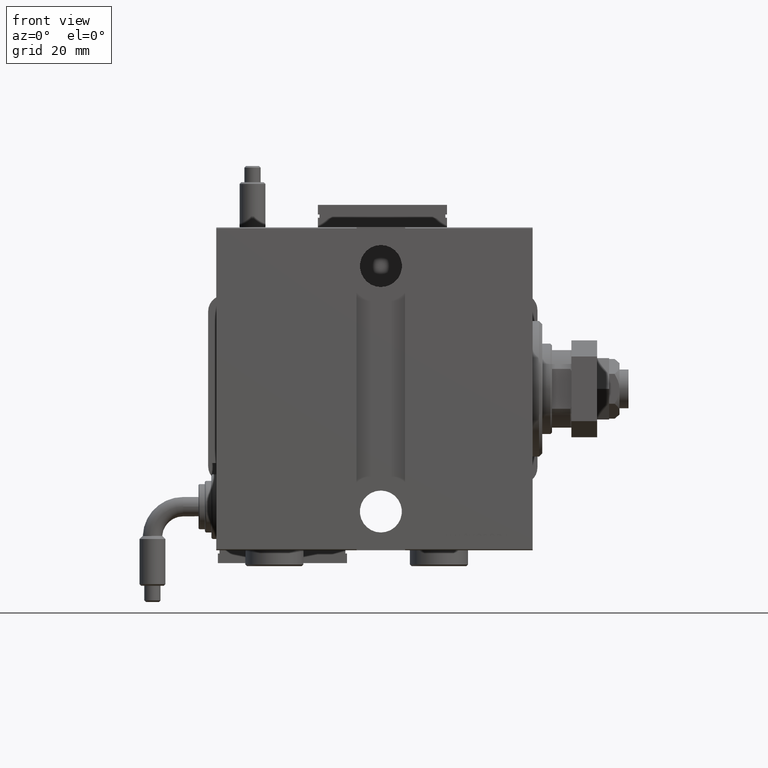
[diagram: clean part render]
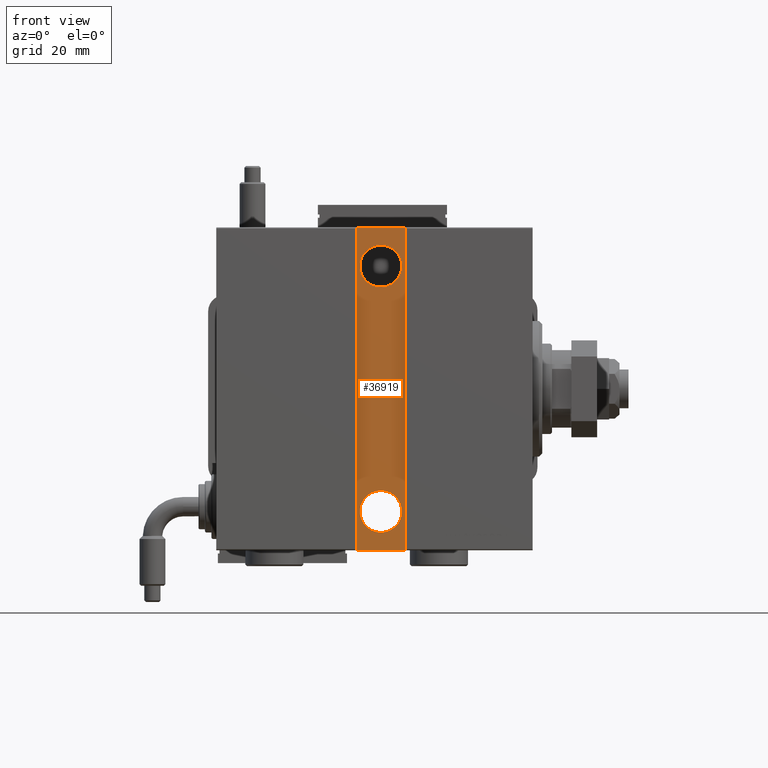
[diagram: same view with one face highlighted and labeled with its STEP entity id]
A machine part, front view. The second image highlights one B-rep face of the part: STEP entity #36919.
In plain terms, the highlighted planar face has unit normal (0, 1, 0).
Its self-contained STEP definition (entity closure, byte-faithful):
#375 = CARTESIAN_POINT ( 'NONE',  ( 47.00000000000002132, 32.50000000000000000, -38.00000000000000000 ) ) ;
#2326 = ORIENTED_EDGE ( 'NONE', *, *, #6521, .T. ) ;
#3016 = LINE ( 'NONE', #39974, #22019 ) ;
#3157 = LINE ( 'NONE', #36382, #58337 ) ;
#3371 = AXIS2_PLACEMENT_3D ( 'NONE', #26455, #7222, #40429 ) ;
#4480 = ORIENTED_EDGE ( 'NONE', *, *, #28757, .T. ) ;
#4868 = EDGE_LOOP ( 'NONE', ( #34737, #2326 ) ) ;
#5207 = AXIS2_PLACEMENT_3D ( 'NONE', #7309, #36789, #13186 ) ;
#5371 = CIRCLE ( 'NONE', #3371, 6.499999999999999112 ) ;
#6521 = EDGE_CURVE ( 'NONE', #58076, #37167, #57302, .T. ) ;
#6912 = DIRECTION ( 'NONE',  ( 1.000000000000000000, -0.000000000000000000, -0.000000000000000000 ) ) ;
#7222 = DIRECTION ( 'NONE',  ( 0.000000000000000000, -1.000000000000000000, 0.000000000000000000 ) ) ;
#7309 = CARTESIAN_POINT ( 'NONE',  ( 47.00000000000002132, 32.50000000000000000, -38.00000000000000000 ) ) ;
#8493 = CARTESIAN_POINT ( 'NONE',  ( 47.00000000000002132, 32.50000000000000000, -31.50000000000000000 ) ) ;
#8744 = AXIS2_PLACEMENT_3D ( 'NONE', #16059, #54534, #16362 ) ;
#8811 = ORIENTED_EDGE ( 'NONE', *, *, #23531, .T. ) ;
#10289 = VERTEX_POINT ( 'NONE', #20961 ) ;
#12133 = VECTOR ( 'NONE', #52247, 1000.000000000000000 ) ;
#13186 = DIRECTION ( 'NONE',  ( 0.000000000000000000, 0.000000000000000000, -1.000000000000000000 ) ) ;
#13444 = CARTESIAN_POINT ( 'NONE',  ( 47.00000000000002132, 32.50000000000000000, 31.50000000000000000 ) ) ;
#14005 = DIRECTION ( 'NONE',  ( 0.000000000000000000, -1.000000000000000000, 0.000000000000000000 ) ) ;
#14646 = VERTEX_POINT ( 'NONE', #8493 ) ;
#15124 = CIRCLE ( 'NONE', #5207, 6.499999999999999112 ) ;
#16059 = CARTESIAN_POINT ( 'NONE',  ( 47.00000000000002132, 32.50000000000000000, 38.00000000000000000 ) ) ;
#16362 = DIRECTION ( 'NONE',  ( 0.000000000000000000, 0.000000000000000000, -1.000000000000000000 ) ) ;
#19981 = CARTESIAN_POINT ( 'NONE',  ( 47.00000000000002132, 32.50000000000000000, -44.50000000000000000 ) ) ;
#20255 = AXIS2_PLACEMENT_3D ( 'NONE', #375, #23319, #42882 ) ;
#20961 = CARTESIAN_POINT ( 'NONE',  ( 39.50000000000000711, 32.50000000000000000, 49.99999999999999289 ) ) ;
#21932 = DIRECTION ( 'NONE',  ( -1.000000000000000000, 0.000000000000000000, 0.000000000000000000 ) ) ;
#22019 = VECTOR ( 'NONE', #21932, 1000.000000000000000 ) ;
#23319 = DIRECTION ( 'NONE',  ( 0.000000000000000000, -1.000000000000000000, 0.000000000000000000 ) ) ;
#23531 = EDGE_CURVE ( 'NONE', #23870, #58712, #24596, .T. ) ;
#23870 = VERTEX_POINT ( 'NONE', #56502 ) ;
#24596 = LINE ( 'NONE', #48189, #12133 ) ;
#26455 = CARTESIAN_POINT ( 'NONE',  ( 47.00000000000002132, 32.50000000000000000, 38.00000000000000000 ) ) ;
#27302 = ORIENTED_EDGE ( 'NONE', *, *, #43210, .T. ) ;
#28621 = EDGE_CURVE ( 'NONE', #37167, #58076, #5371, .T. ) ;
#28757 = EDGE_CURVE ( 'NONE', #14646, #38918, #51982, .T. ) ;
#29324 = AXIS2_PLACEMENT_3D ( 'NONE', #45362, #14005, #60247 ) ;
#30235 = VECTOR ( 'NONE', #59576, 1000.000000000000000 ) ;
#31098 = FACE_OUTER_BOUND ( 'NONE', #40000, .T. ) ;
#31863 = ORIENTED_EDGE ( 'NONE', *, *, #61309, .T. ) ;
#32810 = VERTEX_POINT ( 'NONE', #58661 ) ;
#34737 = ORIENTED_EDGE ( 'NONE', *, *, #28621, .T. ) ;
#36382 = CARTESIAN_POINT ( 'NONE',  ( 54.50000000000001421, 32.50000000000000000, 49.99999999999999289 ) ) ;
#36789 = DIRECTION ( 'NONE',  ( 0.000000000000000000, -1.000000000000000000, 0.000000000000000000 ) ) ;
#36919 = ADVANCED_FACE ( 'NONE', ( #38980, #54986, #31098 ), #50030, .F. ) ;
#37167 = VERTEX_POINT ( 'NONE', #40343 ) ;
#38918 = VERTEX_POINT ( 'NONE', #19981 ) ;
#38980 = FACE_BOUND ( 'NONE', #4868, .T. ) ;
#39974 = CARTESIAN_POINT ( 'NONE',  ( 54.50000000000000000, 32.50000000000000000, -50.00000000000000711 ) ) ;
#40000 = EDGE_LOOP ( 'NONE', ( #31863, #27302, #8811, #56230 ) ) ;
#40061 = LINE ( 'NONE', #49382, #30235 ) ;
#40318 = CARTESIAN_POINT ( 'NONE',  ( 54.50000000000001421, 32.50000000000000711, -50.00000000000000711 ) ) ;
#40343 = CARTESIAN_POINT ( 'NONE',  ( 47.00000000000002132, 32.50000000000000000, 44.50000000000000000 ) ) ;
#40429 = DIRECTION ( 'NONE',  ( 0.000000000000000000, 0.000000000000000000, -1.000000000000000000 ) ) ;
#42882 = DIRECTION ( 'NONE',  ( 0.000000000000000000, 0.000000000000000000, -1.000000000000000000 ) ) ;
#43210 = EDGE_CURVE ( 'NONE', #10289, #23870, #3157, .T. ) ;
#45362 = CARTESIAN_POINT ( 'NONE',  ( 0.000000000000000000, 32.50000000000000000, 0.000000000000000000 ) ) ;
#48189 = CARTESIAN_POINT ( 'NONE',  ( 54.50000000000000000, 32.50000000000000000, -50.00000000000000711 ) ) ;
#49382 = CARTESIAN_POINT ( 'NONE',  ( 39.50000000000000000, 32.50000000000000000, -50.00000000000000711 ) ) ;
#49491 = EDGE_LOOP ( 'NONE', ( #4480, #60565 ) ) ;
#50030 = PLANE ( 'NONE',  #29324 ) ;
#50921 = EDGE_CURVE ( 'NONE', #38918, #14646, #15124, .T. ) ;
#51982 = CIRCLE ( 'NONE', #20255, 6.499999999999999112 ) ;
#52247 = DIRECTION ( 'NONE',  ( -1.387778780781445676E-16, -0.000000000000000000, -1.000000000000000000 ) ) ;
#54036 = EDGE_CURVE ( 'NONE', #58712, #32810, #3016, .T. ) ;
#54534 = DIRECTION ( 'NONE',  ( 0.000000000000000000, -1.000000000000000000, 0.000000000000000000 ) ) ;
#54986 = FACE_BOUND ( 'NONE', #49491, .T. ) ;
#56230 = ORIENTED_EDGE ( 'NONE', *, *, #54036, .T. ) ;
#56502 = CARTESIAN_POINT ( 'NONE',  ( 54.50000000000001421, 32.50000000000000000, 49.99999999999999289 ) ) ;
#57302 = CIRCLE ( 'NONE', #8744, 6.499999999999999112 ) ;
#58076 = VERTEX_POINT ( 'NONE', #13444 ) ;
#58337 = VECTOR ( 'NONE', #6912, 1000.000000000000000 ) ;
#58661 = CARTESIAN_POINT ( 'NONE',  ( 39.50000000000000000, 32.50000000000000000, -50.00000000000000711 ) ) ;
#58712 = VERTEX_POINT ( 'NONE', #40318 ) ;
#59576 = DIRECTION ( 'NONE',  ( 6.938893903907228378E-17, 0.000000000000000000, 1.000000000000000000 ) ) ;
#60247 = DIRECTION ( 'NONE',  ( 0.000000000000000000, -0.000000000000000000, -1.000000000000000000 ) ) ;
#60565 = ORIENTED_EDGE ( 'NONE', *, *, #50921, .T. ) ;
#61309 = EDGE_CURVE ( 'NONE', #32810, #10289, #40061, .T. ) ;